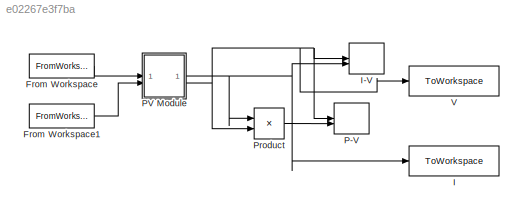
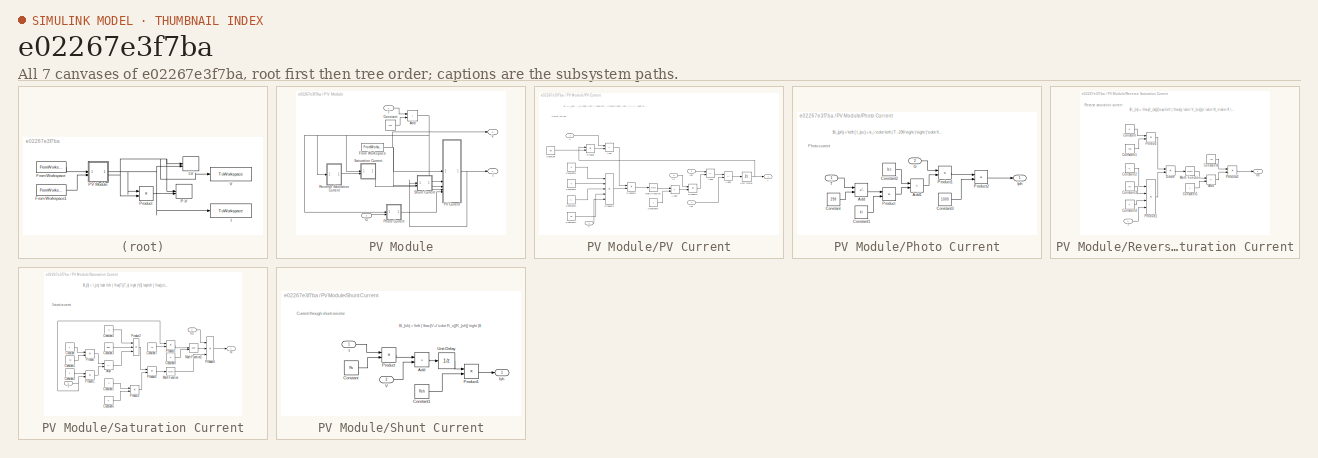
[diagram: thumbnail index - all 7 canvases of the model, root first then tree order]
MODEL slx_e02267e3f7ba
KIND model
CONFIG AbsTol = auto
CONFIG EnableMultiTasking = off
CONFIG FixedStep = auto
CONFIG MaxStep = auto
CONFIG MinStep = auto
CONFIG RelTol = 1e-3
CONFIG SampleTimeConstraint = Unconstrained
CONFIG SolverName = VariableStepAuto
CONFIG StartTime = 0.0
CONFIG StopTime = 10.0
BLOCK [FromWorkspace] From Workspace
  VariableName = T
BLOCK [FromWorkspace] From Workspace1
  VariableName = G
BLOCK [ToWorkspace] I
  FixptAsFi = on
  MaxDataPoints = inf
  SampleTime = -1
  VariableName = I
BLOCK [Record] I-V
  CompatibilityTag = XY
  FileSettingsInternal = {"entries":[{"content":{"excelSettings":{"content":{},"type":"Streamout.ExcelSettings"}},"type":"Streamout.FileSettingStorage","uuid":""}],"packageUris":["http:\/\/schema.mathworks.com\/mf0\/streamout_blocks\/R2020a"],"version":"1.0"}
  Layout = [1 1]
  SignalsInternal = {"entries":[{"content":{"signals":[{"content":{"blockPath":[],"dimensions":[1],"domain":"","lineColor":"#edb120","port":1,"signalID":7169,"signalName":"PV Module:2"},"type":"RecordBlkView.Signal","uuid":""},{"content":{"blockPath":[],"dimensions":[1],"domain":"","lineColor":"#7e2f8e","port":2,"signalID":7172,"signalName":"PV Module:1"},"type":"RecordBlkView.Signal","uuid":""}]},"type":"RecordBlkVi...<+124ch>
  VisualizationBindings = {"xyplotplugin":{"info":[{"series":[],"subplotID":1}]}}
BLOCK [Record] P-V
  CompatibilityTag = XY
  FileSettingsInternal = {"entries":[{"content":{"excelSettings":{"content":{},"type":"Streamout.ExcelSettings"}},"type":"Streamout.FileSettingStorage","uuid":""}],"packageUris":["http:\/\/schema.mathworks.com\/mf0\/streamout_blocks\/R2020a"],"version":"1.0"}
  Layout = [2 1]
  SignalsInternal = {"entries":[{"content":{"signals":[{"content":{"blockPath":[],"dimensions":[1],"domain":"","lineColor":"#77ac30","port":1,"signalID":7161,"signalName":"PV Module:2"},"type":"RecordBlkView.Signal","uuid":""},{"content":{"blockPath":[],"dimensions":[1],"domain":"","lineColor":"#4dbeee","port":2,"signalID":7164,"signalName":"Product"},"type":"RecordBlkView.Signal","uuid":""}]},"type":"RecordBlkView.I...<+120ch>
  VisualizationBindings = {"xyplotplugin":{"info":[{"series":[],"subplotID":1}]}}
BLOCK [SubSystem] PV Module
  InitFcn = ki=0.037,\nq=1.60217646e-19,\nK=1.3806503e-23,\nn=1.0,\nEg0=1.1,\nRs=0.39,\nRsh=545.82,\nTn=298,\nVoc=47.4,\nIsc=9.35,\nNs=72,
BLOCK [Sum] PV Module/Add
  IconShape = rectangular
BLOCK [Constant] PV Module/Constant
  Value = 273
BLOCK [FromWorkspace] PV Module/From Workspace
  OutDataTypeStr = double
  SampleTime = 0.1
  VariableName = voltage_values
BLOCK [Inport] PV Module/G
  Port = 2
BLOCK [Outport] PV Module/I
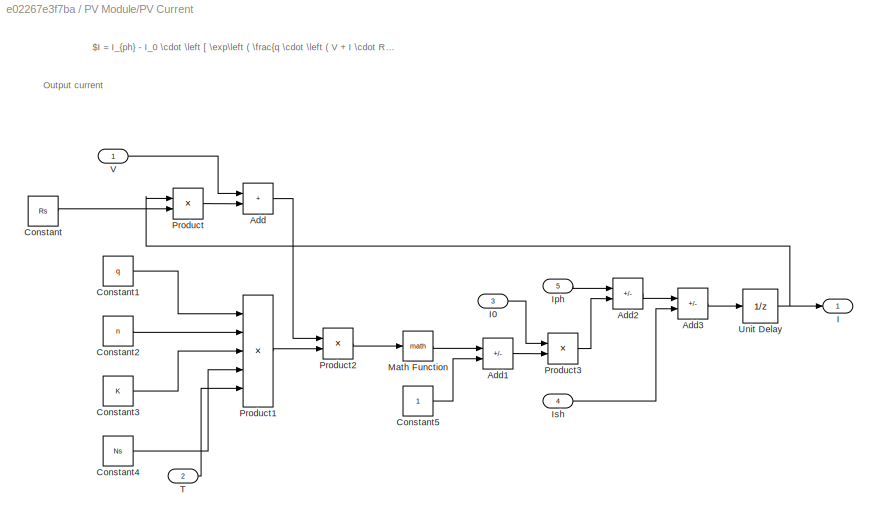
BLOCK [SubSystem] PV Module/PV Current
BLOCK [Sum] PV Module/PV Current/Add
  IconShape = rectangular
BLOCK [Sum] PV Module/PV Current/Add1
  IconShape = rectangular
  Inputs = +-
BLOCK [Sum] PV Module/PV Current/Add2
  IconShape = rectangular
  Inputs = +-
BLOCK [Sum] PV Module/PV Current/Add3
  IconShape = rectangular
  Inputs = +-
BLOCK [Constant] PV Module/PV Current/Constant
  Value = Rs
BLOCK [Constant] PV Module/PV Current/Constant1
  Value = q
BLOCK [Constant] PV Module/PV Current/Constant2
  Value = n
BLOCK [Constant] PV Module/PV Current/Constant3
  Value = K
BLOCK [Constant] PV Module/PV Current/Constant4
  Value = Ns
BLOCK [Constant] PV Module/PV Current/Constant5
BLOCK [Outport] PV Module/PV Current/I
BLOCK [Inport] PV Module/PV Current/I0
  Port = 3
BLOCK [Inport] PV Module/PV Current/Iph
  Port = 5
BLOCK [Inport] PV Module/PV Current/Ish
  Port = 4
BLOCK [Math] PV Module/PV Current/Math Function
BLOCK [Product] PV Module/PV Current/Product
BLOCK [Product] PV Module/PV Current/Product1
  Inputs = *////
BLOCK [Product] PV Module/PV Current/Product2
BLOCK [Product] PV Module/PV Current/Product3
BLOCK [Inport] PV Module/PV Current/T
  Port = 2
BLOCK [UnitDelay] PV Module/PV Current/Unit Delay
  HasFrameUpgradeWarning = on
  SampleTime = -1
BLOCK [Inport] PV Module/PV Current/V
BLOCK [SubSystem] PV Module/Photo Current
BLOCK [Sum] PV Module/Photo Current/Add
  IconShape = rectangular
  Inputs = +-
BLOCK [Sum] PV Module/Photo Current/Add1
  IconShape = rectangular
BLOCK [Constant] PV Module/Photo Current/Constant
  Value = 298
BLOCK [Constant] PV Module/Photo Current/Constant1
  Value = ki
BLOCK [Constant] PV Module/Photo Current/Constant2
  Value = Isc
BLOCK [Constant] PV Module/Photo Current/Constant3
  Value = 1000
BLOCK [Inport] PV Module/Photo Current/G
  Port = 2
BLOCK [Outport] PV Module/Photo Current/Iph
BLOCK [Product] PV Module/Photo Current/Product
BLOCK [Product] PV Module/Photo Current/Product1
BLOCK [Product] PV Module/Photo Current/Product2
  Inputs = */
BLOCK [Inport] PV Module/Photo Current/T
BLOCK [SubSystem] PV Module/Reverse Saturation Current
BLOCK [Sum] PV Module/Reverse Saturation Current/Add
  IconShape = rectangular
  Inputs = +-
BLOCK [Constant] PV Module/Reverse Saturation Current/Constant
  Value = q
BLOCK [Constant] PV Module/Reverse Saturation Current/Constant1
  Value = Voc
BLOCK [Constant] PV Module/Reverse Saturation Current/Constant2
  Value = n
BLOCK [Constant] PV Module/Reverse Saturation Current/Constant3
  Value = Ns
BLOCK [Constant] PV Module/Reverse Saturation Current/Constant4
  Value = K
BLOCK [Constant] PV Module/Reverse Saturation Current/Constant5
BLOCK [Constant] PV Module/Reverse Saturation Current/Constant6
  Value = Isc
BLOCK [Product] PV Module/Reverse Saturation Current/Divide
  Inputs = */
BLOCK [Outport] PV Module/Reverse Saturation Current/Irs
BLOCK [Math] PV Module/Reverse Saturation Current/Math Function
BLOCK [Product] PV Module/Reverse Saturation Current/Product
BLOCK [Product] PV Module/Reverse Saturation Current/Product1
  Inputs = 4
BLOCK [Product] PV Module/Reverse Saturation Current/Product2
  Inputs = */
BLOCK [Inport] PV Module/Reverse Saturation Current/T
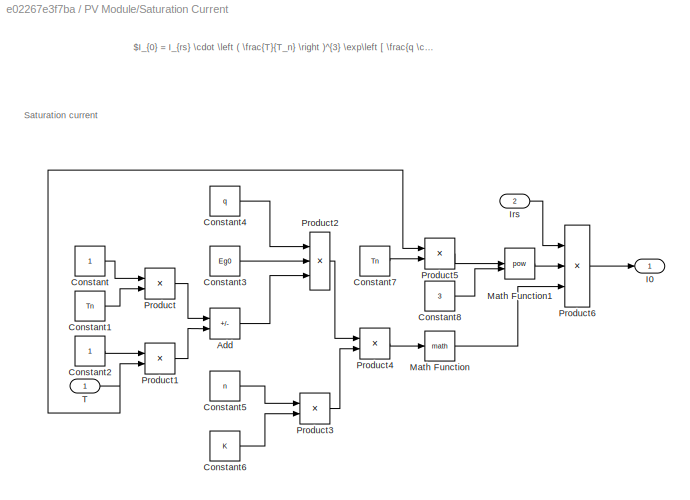
BLOCK [SubSystem] PV Module/Saturation Current
BLOCK [Sum] PV Module/Saturation Current/Add
  IconShape = rectangular
  Inputs = +-
BLOCK [Constant] PV Module/Saturation Current/Constant
BLOCK [Constant] PV Module/Saturation Current/Constant1
  Value = Tn
BLOCK [Constant] PV Module/Saturation Current/Constant2
BLOCK [Constant] PV Module/Saturation Current/Constant3
  Value = Eg0
BLOCK [Constant] PV Module/Saturation Current/Constant4
  Value = q
BLOCK [Constant] PV Module/Saturation Current/Constant5
  Value = n
BLOCK [Constant] PV Module/Saturation Current/Constant6
  Value = K
BLOCK [Constant] PV Module/Saturation Current/Constant7
  Value = Tn
BLOCK [Constant] PV Module/Saturation Current/Constant8
  Value = 3
BLOCK [Outport] PV Module/Saturation Current/I0
BLOCK [Inport] PV Module/Saturation Current/Irs
  Port = 2
BLOCK [Math] PV Module/Saturation Current/Math Function
BLOCK [Math] PV Module/Saturation Current/Math Function1
  Operator = pow
BLOCK [Product] PV Module/Saturation Current/Product
  Inputs = */
BLOCK [Product] PV Module/Saturation Current/Product1
  Inputs = */
BLOCK [Product] PV Module/Saturation Current/Product2
  Inputs = ***
BLOCK [Product] PV Module/Saturation Current/Product3
BLOCK [Product] PV Module/Saturation Current/Product4
  Inputs = */
BLOCK [Product] PV Module/Saturation Current/Product5
  Inputs = */
BLOCK [Product] PV Module/Saturation Current/Product6
  Inputs = 3
BLOCK [Inport] PV Module/Saturation Current/T
BLOCK [SubSystem] PV Module/Shunt Current
BLOCK [Sum] PV Module/Shunt Current/Add
  IconShape = rectangular
BLOCK [Constant] PV Module/Shunt Current/Constant
  Value = Rs
BLOCK [Constant] PV Module/Shunt Current/Constant1
  Value = Rsh
BLOCK [Inport] PV Module/Shunt Current/I
BLOCK [Outport] PV Module/Shunt Current/Ish
BLOCK [Product] PV Module/Shunt Current/Product
BLOCK [Product] PV Module/Shunt Current/Product1
  Inputs = */
BLOCK [UnitDelay] PV Module/Shunt Current/Unit Delay
  HasFrameUpgradeWarning = on
  SampleTime = -1
BLOCK [Inport] PV Module/Shunt Current/V
  Port = 2
BLOCK [Inport] PV Module/T
BLOCK [Outport] PV Module/V
  Port = 2
BLOCK [Product] Product
BLOCK [ToWorkspace] V
  FixptAsFi = on
  MaxDataPoints = inf
  SampleTime = -1
  VariableName = V
ANNOTATION PV Module/PV Current: Output current
ANNOTATION PV Module/PV Current: $I = I_{ph} - I_0 \cdot \left [ \exp\left ( \frac{q \cdot \left ( V + I \cdot R_s \right ) }{n \cdot K \cdot N_s \cdot T} \right ) - 1 \right ]- I_{sh}$
ANNOTATION PV Module/Photo Current: Photo-current
ANNOTATION PV Module/Photo Current: $I_{ph} = \left [ I_{sc} + k_i \cdot \left ( T - 298 \right ) \right ] \cdot \frac{G}{1000}$
ANNOTATION PV Module/Reverse Saturation Current: Reverse saturation current
ANNOTATION PV Module/Reverse Saturation Current: $I_{rs} = \frac{I_{sc}}{\exp\left ( \frac{q \cdot V_{oc}}{n \cdot N_s \cdot K \cdot T} \right ) - 1}$
ANNOTATION PV Module/Saturation Current: Saturation current
ANNOTATION PV Module/Saturation Current: $I_{0} = I_{rs} \cdot \left ( \frac{T}{T_n} \right )^{3} \exp\left [ \frac{q \cdot E_{g0} \cdot \left ( \frac{1}{T_n} - \frac{1}{T} \right ) }{n \cdot K}\right ]$
ANNOTATION PV Module/Shunt Current: Current through shunt resistor
ANNOTATION PV Module/Shunt Current: $I_{sh} = \left ( \frac{V+I \cdot R_s}{R_{sh}} \right )$
LINE From Workspace1:1 -> PV Module:2
LINE From Workspace:1 -> PV Module:1
NET PV Module/Add:1 -> PV Module/PV Current:2, PV Module/Photo Current:1, PV Module/Reverse Saturation Current:1, PV Module/Saturation Current:1
LINE PV Module/Constant:1 -> PV Module/Add:2
NET PV Module/From Workspace:1 -> PV Module/PV Current:1, PV Module/Shunt Current:2, PV Module/V:1
LINE PV Module/G:1 -> PV Module/Photo Current:2
LINE PV Module/PV Current/Add1:1 -> PV Module/PV Current/Product3:2
LINE PV Module/PV Current/Add2:1 -> PV Module/PV Current/Add3:1
LINE PV Module/PV Current/Add3:1 -> PV Module/PV Current/Unit Delay:1
LINE PV Module/PV Current/Add:1 -> PV Module/PV Current/Product2:1
LINE PV Module/PV Current/Constant1:1 -> PV Module/PV Current/Product1:1
LINE PV Module/PV Current/Constant2:1 -> PV Module/PV Current/Product1:2
LINE PV Module/PV Current/Constant3:1 -> PV Module/PV Current/Product1:3
LINE PV Module/PV Current/Constant4:1 -> PV Module/PV Current/Product1:4
LINE PV Module/PV Current/Constant5:1 -> PV Module/PV Current/Add1:2
LINE PV Module/PV Current/Constant:1 -> PV Module/PV Current/Product:2
LINE PV Module/PV Current/I0:1 -> PV Module/PV Current/Product3:1
LINE PV Module/PV Current/Iph:1 -> PV Module/PV Current/Add2:1
LINE PV Module/PV Current/Ish:1 -> PV Module/PV Current/Add3:2
LINE PV Module/PV Current/Math Function:1 -> PV Module/PV Current/Add1:1
LINE PV Module/PV Current/Product1:1 -> PV Module/PV Current/Product2:2
LINE PV Module/PV Current/Product2:1 -> PV Module/PV Current/Math Function:1
LINE PV Module/PV Current/Product3:1 -> PV Module/PV Current/Add2:2
LINE PV Module/PV Current/Product:1 -> PV Module/PV Current/Add:2
LINE PV Module/PV Current/T:1 -> PV Module/PV Current/Product1:5
NET PV Module/PV Current/Unit Delay:1 -> PV Module/PV Current/I:1, PV Module/PV Current/Product:1
LINE PV Module/PV Current/V:1 -> PV Module/PV Current/Add:1
NET PV Module/PV Current:1 -> PV Module/I:1, PV Module/Shunt Current:1
LINE PV Module/Photo Current/Add1:1 -> PV Module/Photo Current/Product1:2
LINE PV Module/Photo Current/Add:1 -> PV Module/Photo Current/Product:1
LINE PV Module/Photo Current/Constant1:1 -> PV Module/Photo Current/Product:2
LINE PV Module/Photo Current/Constant2:1 -> PV Module/Photo Current/Add1:1
LINE PV Module/Photo Current/Constant3:1 -> PV Module/Photo Current/Product2:2
LINE PV Module/Photo Current/Constant:1 -> PV Module/Photo Current/Add:2
LINE PV Module/Photo Current/G:1 -> PV Module/Photo Current/Product1:1
LINE PV Module/Photo Current/Product1:1 -> PV Module/Photo Current/Product2:1
LINE PV Module/Photo Current/Product2:1 -> PV Module/Photo Current/Iph:1
LINE PV Module/Photo Current/Product:1 -> PV Module/Photo Current/Add1:2
LINE PV Module/Photo Current/T:1 -> PV Module/Photo Current/Add:1
LINE PV Module/Photo Current:1 -> PV Module/PV Current:5
LINE PV Module/Reverse Saturation Current/Add:1 -> PV Module/Reverse Saturation Current/Product2:2
LINE PV Module/Reverse Saturation Current/Constant1:1 -> PV Module/Reverse Saturation Current/Product:2
LINE PV Module/Reverse Saturation Current/Constant2:1 -> PV Module/Reverse Saturation Current/Product1:1
LINE PV Module/Reverse Saturation Current/Constant3:1 -> PV Module/Reverse Saturation Current/Product1:2
LINE PV Module/Reverse Saturation Current/Constant4:1 -> PV Module/Reverse Saturation Current/Product1:3
LINE PV Module/Reverse Saturation Current/Constant5:1 -> PV Module/Reverse Saturation Current/Add:2
LINE PV Module/Reverse Saturation Current/Constant6:1 -> PV Module/Reverse Saturation Current/Product2:1
LINE PV Module/Reverse Saturation Current/Constant:1 -> PV Module/Reverse Saturation Current/Product:1
LINE PV Module/Reverse Saturation Current/Divide:1 -> PV Module/Reverse Saturation Current/Math Function:1
LINE PV Module/Reverse Saturation Current/Math Function:1 -> PV Module/Reverse Saturation Current/Add:1
LINE PV Module/Reverse Saturation Current/Product1:1 -> PV Module/Reverse Saturation Current/Divide:2
LINE PV Module/Reverse Saturation Current/Product2:1 -> PV Module/Reverse Saturation Current/Irs:1
LINE PV Module/Reverse Saturation Current/Product:1 -> PV Module/Reverse Saturation Current/Divide:1
LINE PV Module/Reverse Saturation Current/T:1 -> PV Module/Reverse Saturation Current/Product1:4
LINE PV Module/Reverse Saturation Current:1 -> PV Module/Saturation Current:2
LINE PV Module/Saturation Current/Add:1 -> PV Module/Saturation Current/Product2:3
LINE PV Module/Saturation Current/Constant1:1 -> PV Module/Saturation Current/Product:2
LINE PV Module/Saturation Current/Constant2:1 -> PV Module/Saturation Current/Product1:1
LINE PV Module/Saturation Current/Constant3:1 -> PV Module/Saturation Current/Product2:2
LINE PV Module/Saturation Current/Constant4:1 -> PV Module/Saturation Current/Product2:1
LINE PV Module/Saturation Current/Constant5:1 -> PV Module/Saturation Current/Product3:1
LINE PV Module/Saturation Current/Constant6:1 -> PV Module/Saturation Current/Product3:2
LINE PV Module/Saturation Current/Constant7:1 -> PV Module/Saturation Current/Product5:2
LINE PV Module/Saturation Current/Constant8:1 -> PV Module/Saturation Current/Math Function1:2
LINE PV Module/Saturation Current/Constant:1 -> PV Module/Saturation Current/Product:1
LINE PV Module/Saturation Current/Irs:1 -> PV Module/Saturation Current/Product6:1
LINE PV Module/Saturation Current/Math Function1:1 -> PV Module/Saturation Current/Product6:2
LINE PV Module/Saturation Current/Math Function:1 -> PV Module/Saturation Current/Product6:3
LINE PV Module/Saturation Current/Product1:1 -> PV Module/Saturation Current/Add:2
LINE PV Module/Saturation Current/Product2:1 -> PV Module/Saturation Current/Product4:1
LINE PV Module/Saturation Current/Product3:1 -> PV Module/Saturation Current/Product4:2
LINE PV Module/Saturation Current/Product4:1 -> PV Module/Saturation Current/Math Function:1
LINE PV Module/Saturation Current/Product5:1 -> PV Module/Saturation Current/Math Function1:1
LINE PV Module/Saturation Current/Product6:1 -> PV Module/Saturation Current/I0:1
LINE PV Module/Saturation Current/Product:1 -> PV Module/Saturation Current/Add:1
NET PV Module/Saturation Current/T:1 -> PV Module/Saturation Current/Product1:2, PV Module/Saturation Current/Product5:1
LINE PV Module/Saturation Current:1 -> PV Module/PV Current:3
LINE PV Module/Shunt Current/Add:1 -> PV Module/Shunt Current/Unit Delay:1
LINE PV Module/Shunt Current/Constant1:1 -> PV Module/Shunt Current/Product1:2
LINE PV Module/Shunt Current/Constant:1 -> PV Module/Shunt Current/Product:2
LINE PV Module/Shunt Current/I:1 -> PV Module/Shunt Current/Product:1
LINE PV Module/Shunt Current/Product1:1 -> PV Module/Shunt Current/Ish:1
LINE PV Module/Shunt Current/Product:1 -> PV Module/Shunt Current/Add:1
LINE PV Module/Shunt Current/Unit Delay:1 -> PV Module/Shunt Current/Product1:1
LINE PV Module/Shunt Current/V:1 -> PV Module/Shunt Current/Add:2
LINE PV Module/Shunt Current:1 -> PV Module/PV Current:4
LINE PV Module/T:1 -> PV Module/Add:1
NET PV Module:1 -> I-V:2, I:1, Product:1
NET PV Module:2 -> I-V:1, P-V:1, Product:2, V:1
LINE Product:1 -> P-V:2
note: NET lines group one-source signal fan-out (src -> all destinations, sorted); 1:1 wires keep LINE
